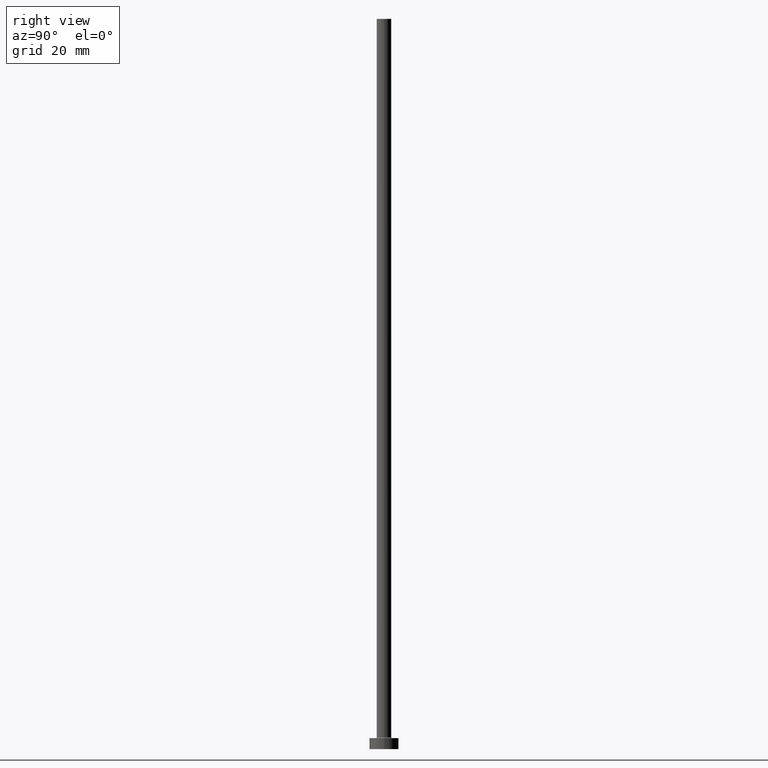
[diagram: clean part render]
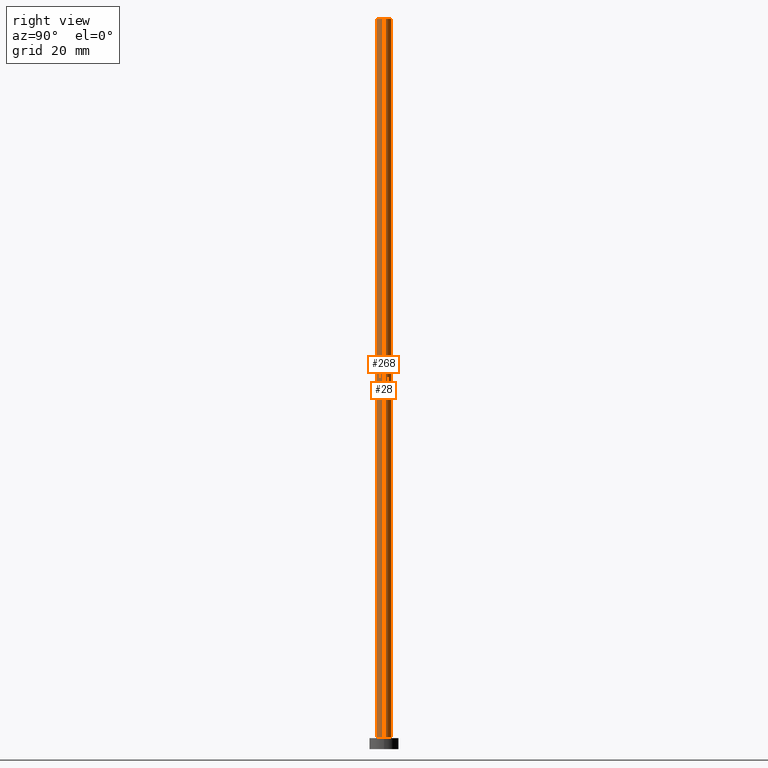
[diagram: same view with one multi-face feature highlighted, each face labeled with its STEP entity id]
A machine part, right view. The highlighted faces form ONE feature: a constant-radius fillet chain: 2 tangent blend faces with common blend radius 2 mm. The faces share edges in the B-rep.
Their STEP definitions:
[1] entity #28 (Cylinder):
#6 = DIRECTION ( 'NONE',  ( -0.000000000000000000, -0.000000000000000000, -1.000000000000000000 ) ) ;
#17 = EDGE_CURVE ( 'NONE', #162, #216, #131, .T. ) ;
#28 = ADVANCED_FACE ( 'NONE', ( #175 ), #332, .T. ) ;
#35 = VERTEX_POINT ( 'NONE', #119 ) ;
#39 = DIRECTION ( 'NONE',  ( 1.000000000000000000, 0.000000000000000000, 0.000000000000000000 ) ) ;
#40 = DIRECTION ( 'NONE',  ( -1.000000000000000000, 0.000000000000000000, 0.000000000000000000 ) ) ;
#42 = CARTESIAN_POINT ( 'NONE',  ( 0.000000000000000000, 0.000000000000000000, 200.0000000000000000 ) ) ;
#49 = DIRECTION ( 'NONE',  ( 0.000000000000000000, 0.000000000000000000, 1.000000000000000000 ) ) ;
#52 = CARTESIAN_POINT ( 'NONE',  ( 2.000000000000000000, 2.449293598294706414E-16, 200.0000000000000000 ) ) ;
#56 = LINE ( 'NONE', #52, #309 ) ;
#60 = DIRECTION ( 'NONE',  ( -0.000000000000000000, -0.000000000000000000, -1.000000000000000000 ) ) ;
#70 = ORIENTED_EDGE ( 'NONE', *, *, #195, .F. ) ;
#82 = EDGE_CURVE ( 'NONE', #160, #35, #244, .T. ) ;
#83 = CARTESIAN_POINT ( 'NONE',  ( 2.000000000000000000, 2.449293598294706414E-16, 200.0000000000000000 ) ) ;
#115 = ORIENTED_EDGE ( 'NONE', *, *, #213, .T. ) ;
#119 = CARTESIAN_POINT ( 'NONE',  ( -2.000000000000000000, 0.000000000000000000, 3.299999999999997158 ) ) ;
#131 = CIRCLE ( 'NONE', #281, 2.000000000000000000 ) ;
#146 = CARTESIAN_POINT ( 'NONE',  ( 2.000000000000000000, 2.449293598294706414E-16, 3.299999999999997158 ) ) ;
#160 = VERTEX_POINT ( 'NONE', #146 ) ;
#162 = VERTEX_POINT ( 'NONE', #83 ) ;
#175 = FACE_OUTER_BOUND ( 'NONE', #255, .T. ) ;
#195 = EDGE_CURVE ( 'NONE', #216, #35, #328, .T. ) ;
#206 = AXIS2_PLACEMENT_3D ( 'NONE', #42, #6, #40 ) ;
#213 = EDGE_CURVE ( 'NONE', #162, #160, #56, .T. ) ;
#216 = VERTEX_POINT ( 'NONE', #259 ) ;
#244 = CIRCLE ( 'NONE', #440, 2.000000000000000000 ) ;
#255 = EDGE_LOOP ( 'NONE', ( #403, #115, #398, #70 ) ) ;
#259 = CARTESIAN_POINT ( 'NONE',  ( -2.000000000000000000, 0.000000000000000000, 200.0000000000000000 ) ) ;
#273 = CARTESIAN_POINT ( 'NONE',  ( -2.000000000000000000, 0.000000000000000000, 200.0000000000000000 ) ) ;
#281 = AXIS2_PLACEMENT_3D ( 'NONE', #334, #49, #288 ) ;
#288 = DIRECTION ( 'NONE',  ( 1.000000000000000000, 0.000000000000000000, 0.000000000000000000 ) ) ;
#309 = VECTOR ( 'NONE', #460, 1000.000000000000000 ) ;
#328 = LINE ( 'NONE', #273, #450 ) ;
#332 = CYLINDRICAL_SURFACE ( 'NONE', #206, 2.000000000000000000 ) ;
#334 = CARTESIAN_POINT ( 'NONE',  ( 0.000000000000000000, 0.000000000000000000, 200.0000000000000000 ) ) ;
#398 = ORIENTED_EDGE ( 'NONE', *, *, #82, .T. ) ;
#403 = ORIENTED_EDGE ( 'NONE', *, *, #17, .F. ) ;
#418 = DIRECTION ( 'NONE',  ( 0.000000000000000000, 0.000000000000000000, 1.000000000000000000 ) ) ;
#432 = CARTESIAN_POINT ( 'NONE',  ( 0.000000000000000000, 0.000000000000000000, 3.299999999999997158 ) ) ;
#440 = AXIS2_PLACEMENT_3D ( 'NONE', #432, #418, #39 ) ;
#450 = VECTOR ( 'NONE', #60, 1000.000000000000000 ) ;
#460 = DIRECTION ( 'NONE',  ( -0.000000000000000000, -0.000000000000000000, -1.000000000000000000 ) ) ;
[2] entity #268 (Cylinder):
#4 = DIRECTION ( 'NONE',  ( 1.000000000000000000, 0.000000000000000000, 0.000000000000000000 ) ) ;
#35 = VERTEX_POINT ( 'NONE', #119 ) ;
#41 = DIRECTION ( 'NONE',  ( 1.000000000000000000, 0.000000000000000000, 0.000000000000000000 ) ) ;
#44 = CARTESIAN_POINT ( 'NONE',  ( 0.000000000000000000, 0.000000000000000000, 200.0000000000000000 ) ) ;
#52 = CARTESIAN_POINT ( 'NONE',  ( 2.000000000000000000, 2.449293598294706414E-16, 200.0000000000000000 ) ) ;
#56 = LINE ( 'NONE', #52, #309 ) ;
#60 = DIRECTION ( 'NONE',  ( -0.000000000000000000, -0.000000000000000000, -1.000000000000000000 ) ) ;
#69 = EDGE_CURVE ( 'NONE', #35, #160, #323, .T. ) ;
#71 = AXIS2_PLACEMENT_3D ( 'NONE', #324, #189, #4 ) ;
#78 = AXIS2_PLACEMENT_3D ( 'NONE', #44, #461, #110 ) ;
#83 = CARTESIAN_POINT ( 'NONE',  ( 2.000000000000000000, 2.449293598294706414E-16, 200.0000000000000000 ) ) ;
#106 = EDGE_CURVE ( 'NONE', #216, #162, #315, .T. ) ;
#110 = DIRECTION ( 'NONE',  ( -1.000000000000000000, 0.000000000000000000, 0.000000000000000000 ) ) ;
#119 = CARTESIAN_POINT ( 'NONE',  ( -2.000000000000000000, 0.000000000000000000, 3.299999999999997158 ) ) ;
#146 = CARTESIAN_POINT ( 'NONE',  ( 2.000000000000000000, 2.449293598294706414E-16, 3.299999999999997158 ) ) ;
#153 = FACE_OUTER_BOUND ( 'NONE', #271, .T. ) ;
#154 = DIRECTION ( 'NONE',  ( 0.000000000000000000, 0.000000000000000000, 1.000000000000000000 ) ) ;
#160 = VERTEX_POINT ( 'NONE', #146 ) ;
#162 = VERTEX_POINT ( 'NONE', #83 ) ;
#189 = DIRECTION ( 'NONE',  ( 0.000000000000000000, 0.000000000000000000, 1.000000000000000000 ) ) ;
#191 = ORIENTED_EDGE ( 'NONE', *, *, #213, .F. ) ;
#195 = EDGE_CURVE ( 'NONE', #216, #35, #328, .T. ) ;
#197 = ORIENTED_EDGE ( 'NONE', *, *, #69, .T. ) ;
#213 = EDGE_CURVE ( 'NONE', #162, #160, #56, .T. ) ;
#216 = VERTEX_POINT ( 'NONE', #259 ) ;
#223 = AXIS2_PLACEMENT_3D ( 'NONE', #250, #154, #41 ) ;
#250 = CARTESIAN_POINT ( 'NONE',  ( 0.000000000000000000, 0.000000000000000000, 200.0000000000000000 ) ) ;
#259 = CARTESIAN_POINT ( 'NONE',  ( -2.000000000000000000, 0.000000000000000000, 200.0000000000000000 ) ) ;
#268 = ADVANCED_FACE ( 'NONE', ( #153 ), #395, .T. ) ;
#271 = EDGE_LOOP ( 'NONE', ( #191, #343, #393, #197 ) ) ;
#273 = CARTESIAN_POINT ( 'NONE',  ( -2.000000000000000000, 0.000000000000000000, 200.0000000000000000 ) ) ;
#309 = VECTOR ( 'NONE', #460, 1000.000000000000000 ) ;
#315 = CIRCLE ( 'NONE', #223, 2.000000000000000000 ) ;
#323 = CIRCLE ( 'NONE', #71, 2.000000000000000000 ) ;
#324 = CARTESIAN_POINT ( 'NONE',  ( 0.000000000000000000, 0.000000000000000000, 3.299999999999997158 ) ) ;
#328 = LINE ( 'NONE', #273, #450 ) ;
#343 = ORIENTED_EDGE ( 'NONE', *, *, #106, .F. ) ;
#393 = ORIENTED_EDGE ( 'NONE', *, *, #195, .T. ) ;
#395 = CYLINDRICAL_SURFACE ( 'NONE', #78, 2.000000000000000000 ) ;
#450 = VECTOR ( 'NONE', #60, 1000.000000000000000 ) ;
#460 = DIRECTION ( 'NONE',  ( -0.000000000000000000, -0.000000000000000000, -1.000000000000000000 ) ) ;
#461 = DIRECTION ( 'NONE',  ( -0.000000000000000000, -0.000000000000000000, -1.000000000000000000 ) ) ;